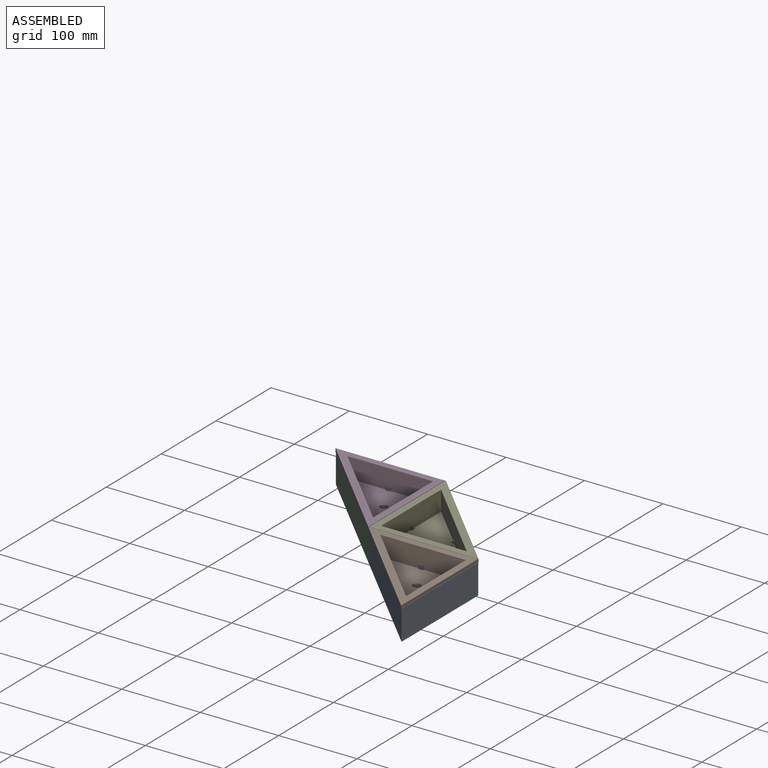
[diagram: assembled view]
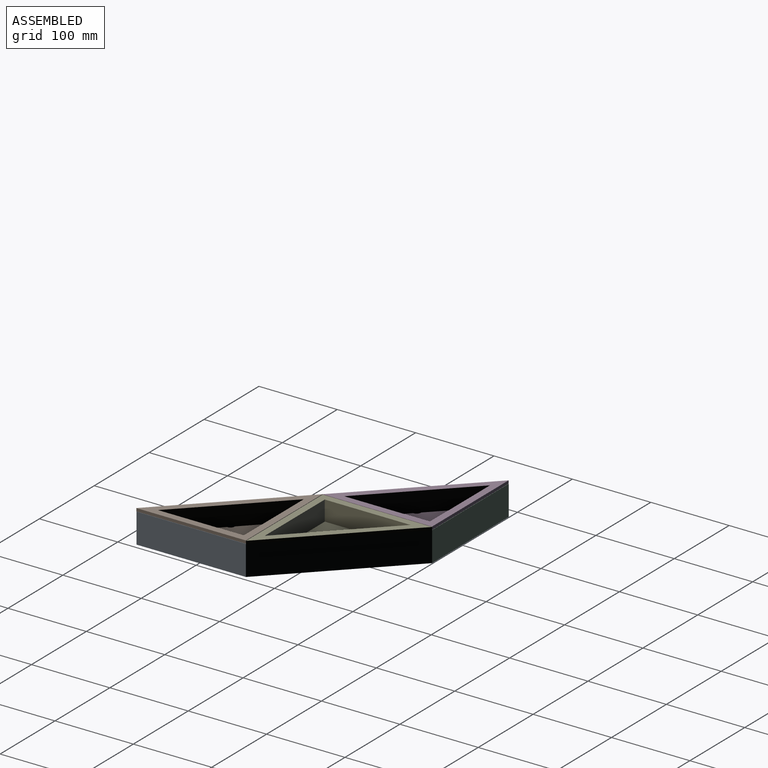
[diagram: assembled view, second angle]
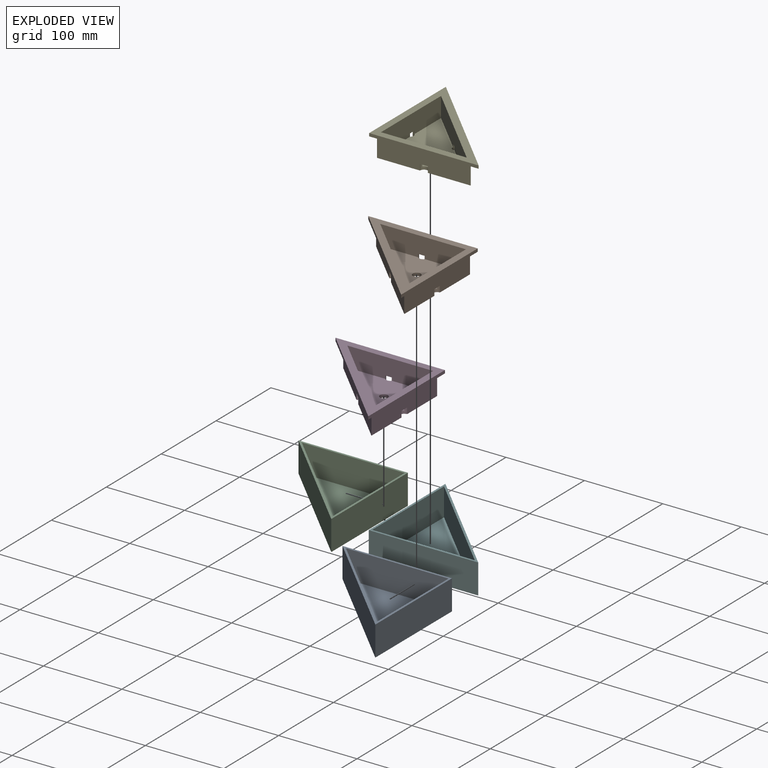
[diagram: exploded view]
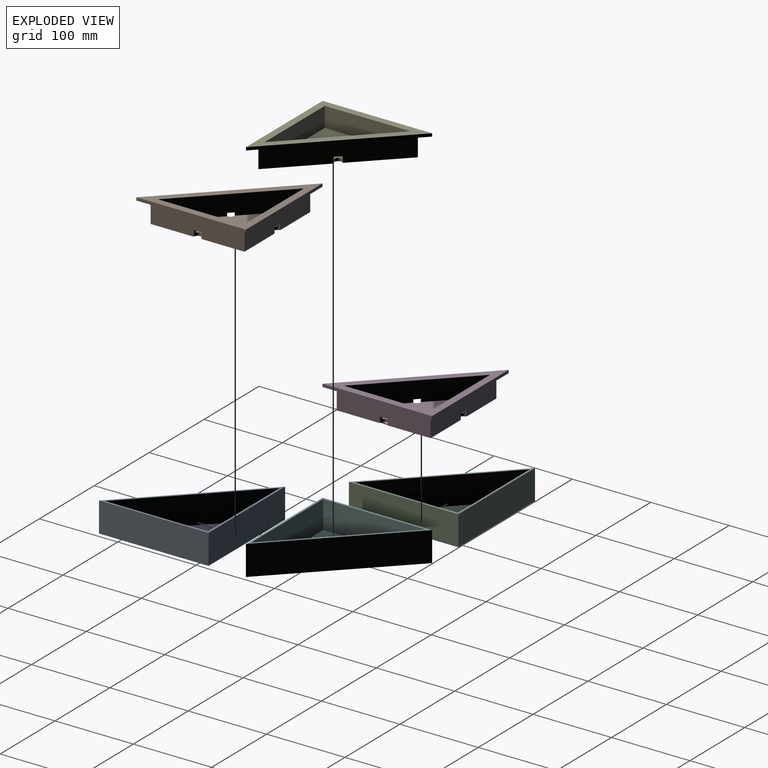
[diagram: exploded view, second angle]
ASSEMBLY  parts=6 mates=6
PART A: 9 faces, bbox 139.7x139.7x38.1 mm
  f0: plane 139.7x38.1mm, normal (1,0,0), area 5322.6mm2, adj f1,f2,f3,f4
  f1: plane 139.7x38.1mm, normal (0,1,0), area 5322.6mm2, adj f0,f2,f3,f4
  f2: plane 139.7x139.7mm, normal (-0.71,-0.71,0), area 7527.3mm2, adj f0,f1,f3,f4
  f3: plane 139.7x139.7mm, normal (0,0,-1), area 9758mm2, adj f0,f1,f2
  f4: plane 139.7x139.7mm, normal (0,0,1), area 1173.9mm2, adj f0,f1,f2,f6,f7,f8
  f5: plane 131.03x131.03mm, normal (0,0,1), area 8584.2mm2, adj f6,f7,f8
  f6: plane 131.03x131.03mm, normal (0.71,0.71,0), area 6589.3mm2, adj f4,f5,f7,f8
  f7: plane 131.03x35.56mm, normal (-1,0,0), area 4659.4mm2, adj f4,f5,f6,f8
  f8: plane 131.03x35.56mm, normal (0,-1,0), area 4659.4mm2, adj f4,f5,f6,f7
PART B: 20 faces, bbox 139.7x139.7x29.2 mm
  f0: plane 139.7x139.7mm, normal (0,0,-1), area 3779.6mm2, adj f1,f2,f3,f9,f10,f11
  f1: plane 139.7x3.81mm, normal (1,0,0), area 532.3mm2, adj f0,f2,f3,f7
  f2: plane 139.7x3.81mm, normal (0,1,0), area 532.3mm2, adj f0,f1,f3,f7
  f3: plane 139.7x139.7mm, normal (-0.71,-0.71,0), area 752.7mm2, adj f0,f1,f2,f7
  f4: plane 119.75x25.4mm, normal (0,1,0), area 2964.3mm2, adj f5,f6,f7,f8,f18,f19
  f5: plane 119.75x25.4mm, normal (1,0,0), area 2964.3mm2, adj f4,f6,f7,f8,f14,f15
  f6: plane 119.75x119.75mm, normal (-0.71,-0.71,0), area 4224.3mm2, adj f4,f5,f7,f8,f16,f17
  f7: plane 139.7x139.7mm, normal (0,0,1), area 2587.5mm2, adj f1,f2,f3,f4,f5,f6
  f8: plane 119.75x119.75mm, normal (0,0,1), area 6967.8mm2, adj f4,f5,f6,f13,f15,f16,f18
  f9: plane 109.35x109.35mm, normal (0.71,0.71,0), area 3896.9mm2, adj f0,f10,f11,f12,f16,f17
  f10: plane 109.35x25.4mm, normal (0,-1,0), area 2746.5mm2, adj f0,f9,f11,f12,f18,f19
  f11: plane 109.35x25.4mm, normal (-1,0,0), area 2746.5mm2, adj f0,f9,f10,f12,f14,f15
  f12: plane 109.35x109.35mm, normal (0,0,-1), area 5862.8mm2, adj f9,f10,f11,f13,f15,f16,f18
  f13: cylinder r=5.08mm len=10.16mm, axis (0,0,1), area 121.6mm2, adj f8,f12
  f14: plane 10.16x3.05mm, normal (0,0,1), area 29mm2, adj f5,f11,f15
  f15: cylinder r=5.08mm len=10.16mm, axis (0,0,1), area 85.7mm2, adj f5,f8,f11,f12,f14
  f16: cylinder r=5.08mm len=8.67mm, axis (0,0,1), area 85.7mm2, adj f6,f8,f9,f12,f17
  f17: plane 8.62x8.62mm, normal (0,0,1), area 29mm2, adj f6,f9,f16
  f18: cylinder r=5.08mm len=10.16mm, axis (0,0,1), area 85.7mm2, adj f4,f8,f10,f12,f19
  f19: plane 10.16x3.05mm, normal (0,0,1), area 29mm2, adj f4,f10,f18
PART C: same geometry as A
PART D: same geometry as B
PART E: same geometry as B
PART F: same geometry as A
PLACE A t=(255.11,-118.06,-48.33)mm
PLACE B rot(axis=(0.71,0.71,0),180deg) t=(394.48,-258.09,31.68)mm
PLACE C t=(115.41,21.64,-48.33)mm
PLACE D rot(axis=(0.71,0.71,0),180deg) t=(254.78,-118.39,31.68)mm
PLACE E rot(axis=(0.71,-0.71,0),180deg) t=(-23.96,-257.43,31.68)mm
PLACE F rot(axis=(0,0,1),180deg) t=(115.41,-397.46,-48.33)mm
MATE planar A.f2 <-> C.f2  axis (-0.71,-0.71,0) through (115.41,-257.76,-29.28)mm
MATE planar F.f1 <-> A.f1  axis (0,-1,0) through (185.26,-257.76,-29.28)mm
MATE planar D.f7 <-> C.f4  axis (0,0,-1) through (66.28,-167.19,-10.23)mm
MATE planar E.f7 <-> F.f4  axis (0,0,-1) through (164.54,-208.63,-10.23)mm
MATE planar B.f7 <-> A.f4  axis (0,0,-1) through (205.98,-306.89,-10.23)mm
MATE parallel C.f2 <-> A.f2  axis (-0.71,-0.71,0) through (115.41,-257.76,-29.28)mm
